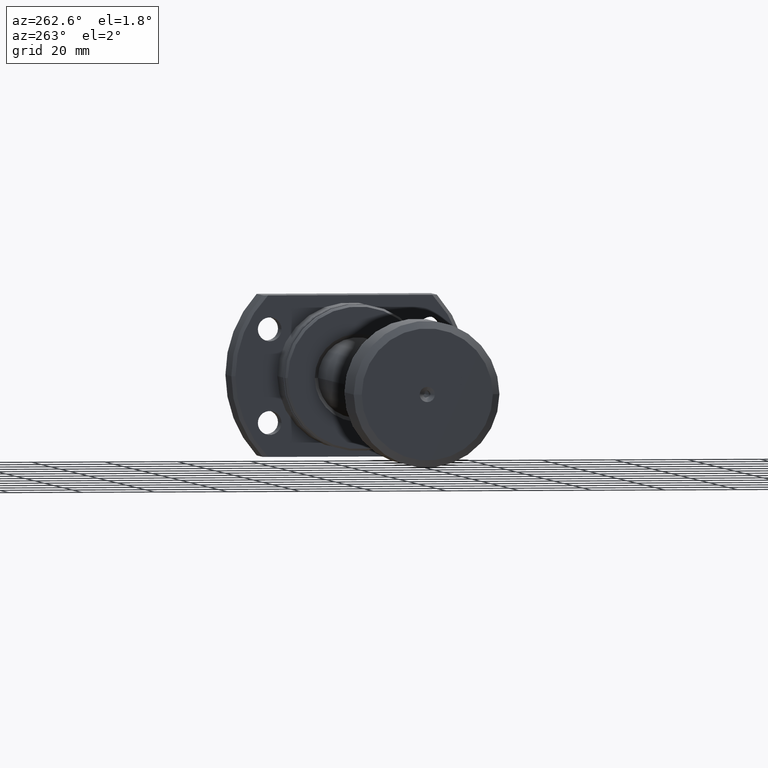
[diagram: clean part render]
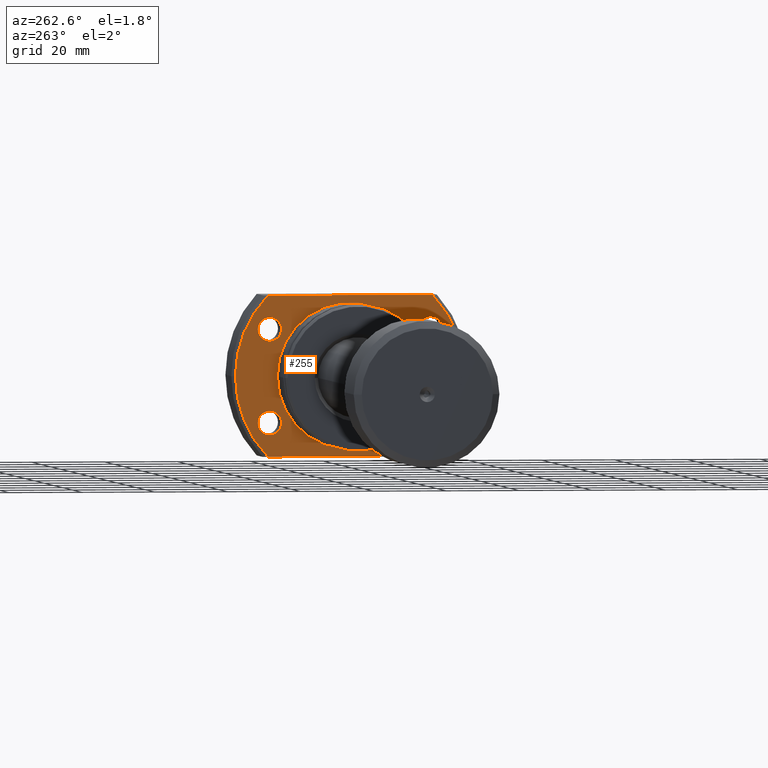
[diagram: same view with one face highlighted and labeled with its STEP entity id]
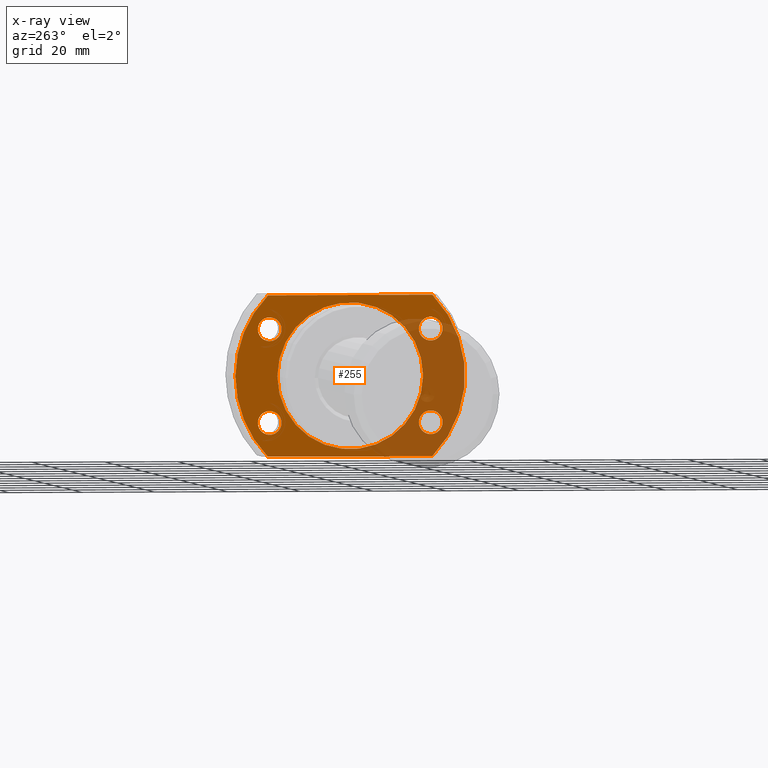
[diagram: x-ray of the same camera — body ghosted, the highlighted face saturated]
A machine part, auxiliary view. The second image highlights one B-rep face of the part: STEP entity #255.
The next image is the same camera in x-ray: the body ghosted, the highlighted face saturated — about 37% of this face is hidden behind the body in this view.
In plain terms, the highlighted planar face has unit normal (1, 0, 0).
Its self-contained STEP definition (entity closure, byte-faithful):
#12 = CIRCLE ( 'NONE', #275, 3.249999999999999556 ) ;
#37 = FACE_BOUND ( 'NONE', #1945, .T. ) ;
#46 = EDGE_CURVE ( 'NONE', #2881, #2246, #2460, .T. ) ;
#52 = CARTESIAN_POINT ( 'NONE',  ( 17.50000000000000000, -18.85000000000050946, 12.74999999999999822 ) ) ;
#109 = EDGE_LOOP ( 'NONE', ( #2911, #1556 ) ) ;
#123 = DIRECTION ( 'NONE',  ( 2.721437331438560389E-17, -1.000000000000000000, 0.000000000000000000 ) ) ;
#153 = EDGE_CURVE ( 'NONE', #2437, #3146, #12, .T. ) ;
#199 = EDGE_LOOP ( 'NONE', ( #1818, #1206, #2834, #2254, #805 ) ) ;
#232 = DIRECTION ( 'NONE',  ( 1.000000000000000000, 2.721437331438560389E-17, -0.000000000000000000 ) ) ;
#235 = DIRECTION ( 'NONE',  ( 2.721437331438560389E-17, -1.000000000000000000, 0.000000000000000000 ) ) ;
#255 = ADVANCED_FACE ( 'NONE', ( #37, #3154, #1400, #3122, #1341, #1139 ), #1124, .F. ) ;
#275 = AXIS2_PLACEMENT_3D ( 'NONE', #1051, #3009, #2533 ) ;
#318 = CARTESIAN_POINT ( 'NONE',  ( 17.50000000000000000, 25.34999999999949338, -12.75000000000000178 ) ) ;
#342 = VERTEX_POINT ( 'NONE', #1862 ) ;
#362 = CARTESIAN_POINT ( 'NONE',  ( 17.50000000000000000, -22.10000000000050946, 12.74999999999999822 ) ) ;
#366 = CARTESIAN_POINT ( 'NONE',  ( 17.50000000000000000, -19.99999999999999645, 22.00000000000000355 ) ) ;
#385 = EDGE_CURVE ( 'NONE', #1901, #2800, #2582, .T. ) ;
#388 = AXIS2_PLACEMENT_3D ( 'NONE', #2136, #2599, #2850 ) ;
#389 = VECTOR ( 'NONE', #123, 1000.000000000000000 ) ;
#390 = DIRECTION ( 'NONE',  ( -2.721437331438560389E-17, 1.000000000000000000, 0.000000000000000000 ) ) ;
#408 = CARTESIAN_POINT ( 'NONE',  ( 17.50000000000000000, -25.35000000000050591, -12.75000000000000178 ) ) ;
#448 = EDGE_CURVE ( 'NONE', #2899, #1062, #1670, .T. ) ;
#454 = DIRECTION ( 'NONE',  ( 0.000000000000000000, 1.000000000000000000, 0.000000000000000000 ) ) ;
#482 = DIRECTION ( 'NONE',  ( 1.000000000000000000, 2.721437331438560389E-17, -0.000000000000000000 ) ) ;
#516 = CARTESIAN_POINT ( 'NONE',  ( 17.50000000000000000, 22.09999999999949338, 12.74999999999999822 ) ) ;
#530 = CIRCLE ( 'NONE', #3187, 3.249999999999999556 ) ;
#535 = CIRCLE ( 'NONE', #388, 31.49999999999993250 ) ;
#536 = AXIS2_PLACEMENT_3D ( 'NONE', #3003, #1183, #1520 ) ;
#549 = EDGE_CURVE ( 'NONE', #1953, #342, #1611, .T. ) ;
#556 = EDGE_LOOP ( 'NONE', ( #1697, #2634 ) ) ;
#573 = DIRECTION ( 'NONE',  ( 1.000000000000000000, 2.721437331438560389E-17, -0.000000000000000000 ) ) ;
#584 = CARTESIAN_POINT ( 'NONE',  ( 17.50000000000000000, -22.10000000000050946, -12.75000000000000178 ) ) ;
#599 = CARTESIAN_POINT ( 'NONE',  ( 17.50000000000000000, -19.99999999999999645, 0.000000000000000000 ) ) ;
#618 = EDGE_CURVE ( 'NONE', #1084, #2950, #1359, .T. ) ;
#628 = DIRECTION ( 'NONE',  ( 1.000000000000000000, 2.721437331438560389E-17, -0.000000000000000000 ) ) ;
#692 = AXIS2_PLACEMENT_3D ( 'NONE', #599, #1873, #390 ) ;
#711 = DIRECTION ( 'NONE',  ( 0.000000000000000000, 1.000000000000000000, 0.000000000000000000 ) ) ;
#722 = CARTESIAN_POINT ( 'NONE',  ( 17.50000000000001776, -22.54440063519093940, -22.00000000000000355 ) ) ;
#738 = CARTESIAN_POINT ( 'NONE',  ( 17.50000000000000000, -19.99999999999999645, -22.00000000000000355 ) ) ;
#751 = DIRECTION ( 'NONE',  ( 0.000000000000000000, 1.000000000000000000, 0.000000000000000000 ) ) ;
#805 = ORIENTED_EDGE ( 'NONE', *, *, #1587, .F. ) ;
#835 = VERTEX_POINT ( 'NONE', #1641 ) ;
#836 = DIRECTION ( 'NONE',  ( 0.000000000000000000, 1.000000000000000000, 0.000000000000000000 ) ) ;
#837 = CARTESIAN_POINT ( 'NONE',  ( 17.50000000000000000, -22.10000000000050946, 12.74999999999999822 ) ) ;
#848 = CARTESIAN_POINT ( 'NONE',  ( 17.50000000000000000, 19.99999999999999645, 0.000000000000000000 ) ) ;
#893 = ORIENTED_EDGE ( 'NONE', *, *, #2521, .T. ) ;
#907 = DIRECTION ( 'NONE',  ( 0.000000000000000000, 1.000000000000000000, 0.000000000000000000 ) ) ;
#948 = CIRCLE ( 'NONE', #2193, 3.249999999999999556 ) ;
#994 = CARTESIAN_POINT ( 'NONE',  ( 17.50000000000000000, 22.09999999999949338, -12.75000000000000178 ) ) ;
#1007 = CARTESIAN_POINT ( 'NONE',  ( 17.50000000000001776, -22.54440063519093940, 22.00000000000000355 ) ) ;
#1044 = EDGE_CURVE ( 'NONE', #1808, #1619, #530, .T. ) ;
#1051 = CARTESIAN_POINT ( 'NONE',  ( 17.50000000000000000, 22.09999999999949338, 12.74999999999999822 ) ) ;
#1062 = VERTEX_POINT ( 'NONE', #848 ) ;
#1083 = CARTESIAN_POINT ( 'NONE',  ( 17.50000000000000355, 22.54440063519089676, 22.00000000000000355 ) ) ;
#1084 = VERTEX_POINT ( 'NONE', #3096 ) ;
#1124 = PLANE ( 'NONE',  #692 ) ;
#1139 = FACE_OUTER_BOUND ( 'NONE', #199, .T. ) ;
#1156 = DIRECTION ( 'NONE',  ( 0.000000000000000000, 1.000000000000000000, 0.000000000000000000 ) ) ;
#1171 = EDGE_CURVE ( 'NONE', #342, #1953, #948, .T. ) ;
#1183 = DIRECTION ( 'NONE',  ( 1.000000000000000000, 2.721437331438560389E-17, -0.000000000000000000 ) ) ;
#1206 = ORIENTED_EDGE ( 'NONE', *, *, #3183, .F. ) ;
#1242 = CARTESIAN_POINT ( 'NONE',  ( 17.50000000000000000, 25.34999999999949338, 12.74999999999999822 ) ) ;
#1329 = CARTESIAN_POINT ( 'NONE',  ( 17.50000000000000355, 22.54440063519089676, -22.00000000000000355 ) ) ;
#1341 = FACE_BOUND ( 'NONE', #556, .T. ) ;
#1359 = CIRCLE ( 'NONE', #2649, 3.249999999999999556 ) ;
#1372 = CIRCLE ( 'NONE', #3201, 3.249999999999999556 ) ;
#1393 = EDGE_LOOP ( 'NONE', ( #3180, #2805 ) ) ;
#1400 = FACE_BOUND ( 'NONE', #109, .T. ) ;
#1422 = DIRECTION ( 'NONE',  ( 0.000000000000000000, 1.000000000000000000, 0.000000000000000000 ) ) ;
#1427 = ORIENTED_EDGE ( 'NONE', *, *, #153, .T. ) ;
#1467 = DIRECTION ( 'NONE',  ( 1.000000000000000000, 2.721437331438560389E-17, -0.000000000000000000 ) ) ;
#1473 = CIRCLE ( 'NONE', #1686, 3.249999999999999556 ) ;
#1515 = CIRCLE ( 'NONE', #2706, 19.99999999999999645 ) ;
#1520 = DIRECTION ( 'NONE',  ( 0.000000000000000000, 1.000000000000000000, 0.000000000000000000 ) ) ;
#1556 = ORIENTED_EDGE ( 'NONE', *, *, #3134, .T. ) ;
#1587 = EDGE_CURVE ( 'NONE', #2800, #2246, #535, .T. ) ;
#1611 = CIRCLE ( 'NONE', #2750, 3.249999999999999556 ) ;
#1619 = VERTEX_POINT ( 'NONE', #408 ) ;
#1641 = CARTESIAN_POINT ( 'NONE',  ( 17.50000000000000355, 31.49999999999993250, 0.000000000000000000 ) ) ;
#1670 = CIRCLE ( 'NONE', #536, 19.99999999999999645 ) ;
#1683 = AXIS2_PLACEMENT_3D ( 'NONE', #516, #1467, #1713 ) ;
#1686 = AXIS2_PLACEMENT_3D ( 'NONE', #2709, #482, #2695 ) ;
#1696 = EDGE_CURVE ( 'NONE', #2881, #835, #2198, .T. ) ;
#1697 = ORIENTED_EDGE ( 'NONE', *, *, #2225, .T. ) ;
#1713 = DIRECTION ( 'NONE',  ( 0.000000000000000000, 1.000000000000000000, 0.000000000000000000 ) ) ;
#1808 = VERTEX_POINT ( 'NONE', #2726 ) ;
#1818 = ORIENTED_EDGE ( 'NONE', *, *, #385, .F. ) ;
#1854 = DIRECTION ( 'NONE',  ( 1.000000000000000000, 2.721437331438560389E-17, -0.000000000000000000 ) ) ;
#1862 = CARTESIAN_POINT ( 'NONE',  ( 17.50000000000000000, 18.84999999999949694, -12.75000000000000178 ) ) ;
#1873 = DIRECTION ( 'NONE',  ( 1.000000000000000000, 2.721437331438560389E-17, -0.000000000000000000 ) ) ;
#1892 = CARTESIAN_POINT ( 'NONE',  ( 17.50000000000000355, 4.762515330017481928E-16, 0.000000000000000000 ) ) ;
#1901 = VERTEX_POINT ( 'NONE', #1083 ) ;
#1912 = CARTESIAN_POINT ( 'NONE',  ( 17.50000000000000000, 22.09999999999949338, -12.75000000000000178 ) ) ;
#1945 = EDGE_LOOP ( 'NONE', ( #2536, #1427 ) ) ;
#1953 = VERTEX_POINT ( 'NONE', #318 ) ;
#1966 = CARTESIAN_POINT ( 'NONE',  ( 17.50000000000000000, 4.762515330017480942E-16, 0.000000000000000000 ) ) ;
#1978 = DIRECTION ( 'NONE',  ( 1.000000000000000000, 2.721437331438560389E-17, -0.000000000000000000 ) ) ;
#1996 = CIRCLE ( 'NONE', #2985, 31.49999999999993250 ) ;
#2042 = DIRECTION ( 'NONE',  ( 0.000000000000000000, 1.000000000000000000, 0.000000000000000000 ) ) ;
#2074 = CARTESIAN_POINT ( 'NONE',  ( 17.50000000000000000, -19.99999999999999645, 2.449293598294706119E-15 ) ) ;
#2098 = AXIS2_PLACEMENT_3D ( 'NONE', #1892, #628, #907 ) ;
#2136 = CARTESIAN_POINT ( 'NONE',  ( 17.50000000000000355, 4.762515330017481928E-16, 0.000000000000000000 ) ) ;
#2193 = AXIS2_PLACEMENT_3D ( 'NONE', #1912, #2900, #1156 ) ;
#2198 = CIRCLE ( 'NONE', #2098, 31.49999999999993250 ) ;
#2225 = EDGE_CURVE ( 'NONE', #1062, #2899, #1515, .T. ) ;
#2246 = VERTEX_POINT ( 'NONE', #722 ) ;
#2254 = ORIENTED_EDGE ( 'NONE', *, *, #46, .T. ) ;
#2409 = DIRECTION ( 'NONE',  ( 1.000000000000000000, 2.721437331438560389E-17, -0.000000000000000000 ) ) ;
#2437 = VERTEX_POINT ( 'NONE', #2991 ) ;
#2460 = LINE ( 'NONE', #738, #2655 ) ;
#2521 = EDGE_CURVE ( 'NONE', #2950, #1084, #1372, .T. ) ;
#2533 = DIRECTION ( 'NONE',  ( 0.000000000000000000, 1.000000000000000000, 0.000000000000000000 ) ) ;
#2536 = ORIENTED_EDGE ( 'NONE', *, *, #2724, .T. ) ;
#2582 = LINE ( 'NONE', #366, #389 ) ;
#2599 = DIRECTION ( 'NONE',  ( 1.000000000000000000, 2.721437331438560389E-17, -0.000000000000000000 ) ) ;
#2634 = ORIENTED_EDGE ( 'NONE', *, *, #448, .T. ) ;
#2649 = AXIS2_PLACEMENT_3D ( 'NONE', #362, #573, #836 ) ;
#2655 = VECTOR ( 'NONE', #235, 1000.000000000000000 ) ;
#2695 = DIRECTION ( 'NONE',  ( 0.000000000000000000, 1.000000000000000000, 0.000000000000000000 ) ) ;
#2706 = AXIS2_PLACEMENT_3D ( 'NONE', #1966, #2409, #454 ) ;
#2709 = CARTESIAN_POINT ( 'NONE',  ( 17.50000000000000000, -22.10000000000050946, -12.75000000000000178 ) ) ;
#2724 = EDGE_CURVE ( 'NONE', #3146, #2437, #2931, .T. ) ;
#2726 = CARTESIAN_POINT ( 'NONE',  ( 17.50000000000000000, -18.85000000000050946, -12.75000000000000178 ) ) ;
#2750 = AXIS2_PLACEMENT_3D ( 'NONE', #994, #1978, #751 ) ;
#2800 = VERTEX_POINT ( 'NONE', #1007 ) ;
#2801 = ORIENTED_EDGE ( 'NONE', *, *, #618, .T. ) ;
#2805 = ORIENTED_EDGE ( 'NONE', *, *, #1171, .T. ) ;
#2818 = EDGE_LOOP ( 'NONE', ( #893, #2801 ) ) ;
#2834 = ORIENTED_EDGE ( 'NONE', *, *, #1696, .F. ) ;
#2850 = DIRECTION ( 'NONE',  ( 0.000000000000000000, 1.000000000000000000, 0.000000000000000000 ) ) ;
#2881 = VERTEX_POINT ( 'NONE', #1329 ) ;
#2899 = VERTEX_POINT ( 'NONE', #2074 ) ;
#2900 = DIRECTION ( 'NONE',  ( 1.000000000000000000, 2.721437331438560389E-17, -0.000000000000000000 ) ) ;
#2911 = ORIENTED_EDGE ( 'NONE', *, *, #1044, .T. ) ;
#2931 = CIRCLE ( 'NONE', #1683, 3.249999999999999556 ) ;
#2933 = CARTESIAN_POINT ( 'NONE',  ( 17.50000000000000355, 4.762515330017481928E-16, 0.000000000000000000 ) ) ;
#2950 = VERTEX_POINT ( 'NONE', #52 ) ;
#2985 = AXIS2_PLACEMENT_3D ( 'NONE', #2933, #232, #711 ) ;
#2991 = CARTESIAN_POINT ( 'NONE',  ( 17.50000000000000000, 18.84999999999949694, 12.74999999999999822 ) ) ;
#3003 = CARTESIAN_POINT ( 'NONE',  ( 17.50000000000000000, 4.762515330017480942E-16, 0.000000000000000000 ) ) ;
#3009 = DIRECTION ( 'NONE',  ( 1.000000000000000000, 2.721437331438560389E-17, -0.000000000000000000 ) ) ;
#3096 = CARTESIAN_POINT ( 'NONE',  ( 17.50000000000000000, -25.35000000000050591, 12.74999999999999822 ) ) ;
#3122 = FACE_BOUND ( 'NONE', #1393, .T. ) ;
#3128 = DIRECTION ( 'NONE',  ( 1.000000000000000000, 2.721437331438560389E-17, -0.000000000000000000 ) ) ;
#3134 = EDGE_CURVE ( 'NONE', #1619, #1808, #1473, .T. ) ;
#3146 = VERTEX_POINT ( 'NONE', #1242 ) ;
#3154 = FACE_BOUND ( 'NONE', #2818, .T. ) ;
#3180 = ORIENTED_EDGE ( 'NONE', *, *, #549, .T. ) ;
#3183 = EDGE_CURVE ( 'NONE', #835, #1901, #1996, .T. ) ;
#3187 = AXIS2_PLACEMENT_3D ( 'NONE', #584, #1854, #2042 ) ;
#3201 = AXIS2_PLACEMENT_3D ( 'NONE', #837, #3128, #1422 ) ;